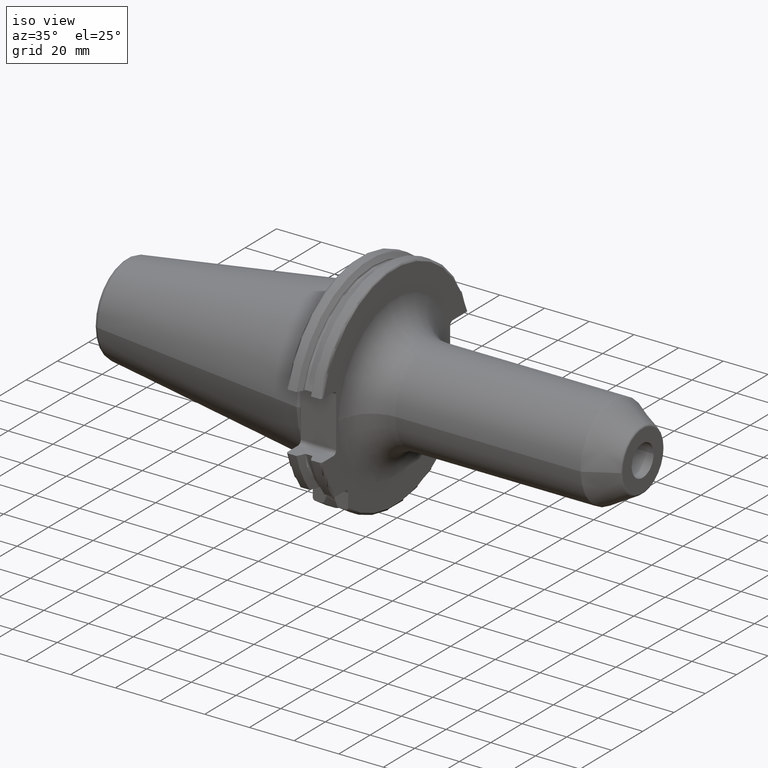
[diagram: clean part render]
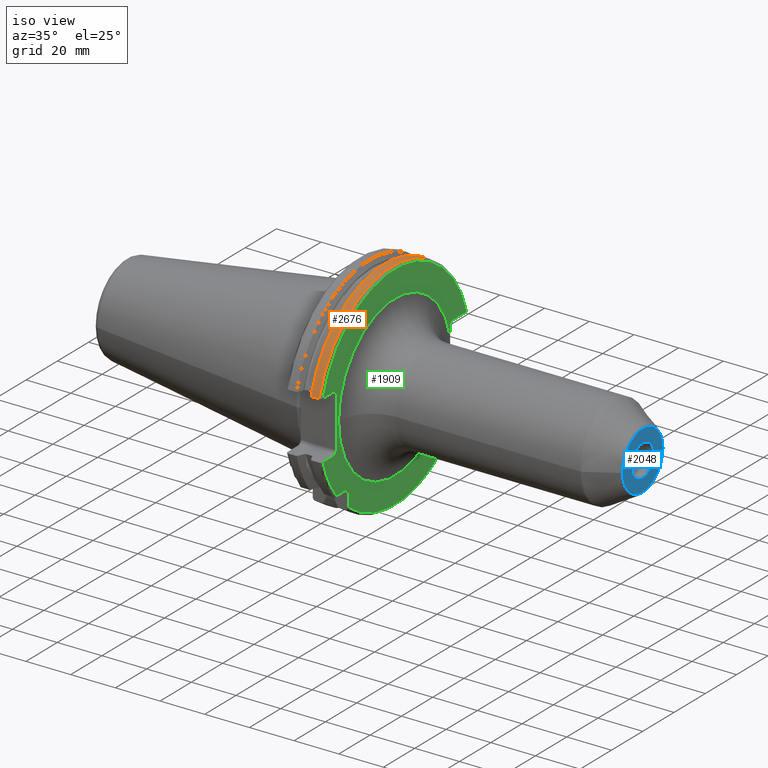
[diagram: same view with three faces highlighted in distinct colors, each labeled with its STEP entity id]
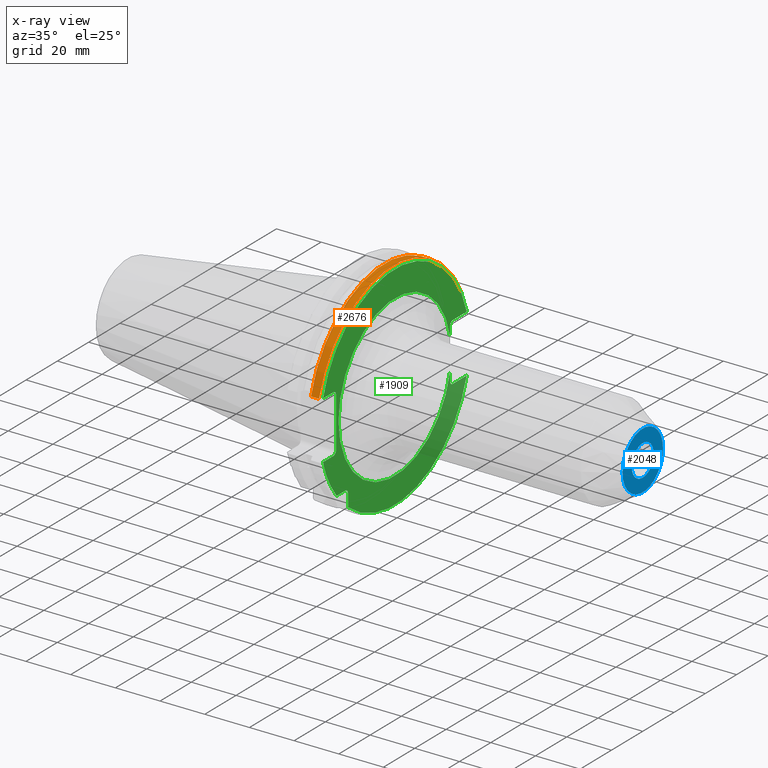
[diagram: x-ray of the same camera — body ghosted, the three highlighted faces saturated]
A machine part, iso view with three faces highlighted in distinct colors.
The next image is the same camera in x-ray (body ghosted, the three faces saturated) — at least one of them is partly hidden behind the body in this view.
Their STEP definitions:

[orange] entity #2676 — the highlighted cylindrical surface (partial cylindrical patch) has radius 48.7375 mm, axis along (1, 0, 0).
#839=DIRECTION('',(1.E0,0.E0,0.E0));
#840=VECTOR('',#839,3.634621614173E0);
#841=CARTESIAN_POINT('',(1.441537838583E1,4.699929686974E1,1.29E1));
#842=LINE('',#841,#840);
#843=CARTESIAN_POINT('',(1.805E1,0.E0,0.E0));
#844=DIRECTION('',(1.E0,0.E0,0.E0));
#845=DIRECTION('',(0.E0,9.643354064066E-1,2.646832521159E-1));
#846=AXIS2_PLACEMENT_3D('',#843,#844,#845);
#848=DIRECTION('',(1.E0,0.E0,0.E0));
#849=VECTOR('',#848,3.634621614173E0);
#850=CARTESIAN_POINT('',(1.441537838583E1,-4.699929686974E1,1.29E1));
#851=LINE('',#850,#849);
#852=CARTESIAN_POINT('',(1.441537838583E1,0.E0,0.E0));
#853=DIRECTION('',(1.E0,0.E0,0.E0));
#854=DIRECTION('',(0.E0,9.643354064066E-1,2.646832521159E-1));
#855=AXIS2_PLACEMENT_3D('',#852,#853,#854);
#898=CARTESIAN_POINT('',(1.441537838583E1,4.699929686974E1,1.29E1));
#910=CARTESIAN_POINT('',(1.441537838583E1,-4.699929686974E1,1.29E1));
#1525=VERTEX_POINT('',#898);
#1526=VERTEX_POINT('',#910);
#1541=CARTESIAN_POINT('',(1.805E1,4.699929686974E1,1.29E1));
#1542=VERTEX_POINT('',#1541);
#1545=CARTESIAN_POINT('',(1.805E1,-4.699929686974E1,1.29E1));
#1546=VERTEX_POINT('',#1545);
#2664=CARTESIAN_POINT('',(-1.076325E2,0.E0,0.E0));
#2665=DIRECTION('',(1.E0,0.E0,0.E0));
#2666=DIRECTION('',(0.E0,-1.E0,0.E0));
#2667=AXIS2_PLACEMENT_3D('',#2664,#2665,#2666);
#2668=CYLINDRICAL_SURFACE('',#2667,4.87375E1);
#2669=ORIENTED_EDGE('',*,*,#2602,.T.);
#2670=ORIENTED_EDGE('',*,*,#2645,.T.);
#2671=ORIENTED_EDGE('',*,*,#2261,.F.);
#2673=ORIENTED_EDGE('',*,*,#2672,.F.);
#2674=EDGE_LOOP('',(#2669,#2670,#2671,#2673));
#2675=FACE_OUTER_BOUND('',#2674,.F.);
#2676=ADVANCED_FACE('',(#2675),#2668,.T.);
#847=CIRCLE('',#846,4.87375E1);
#856=CIRCLE('',#855,4.87375E1);
#2261=EDGE_CURVE('',#1526,#1546,#851,.T.);
#2602=EDGE_CURVE('',#1525,#1542,#842,.T.);
#2645=EDGE_CURVE('',#1542,#1546,#847,.T.);
#2672=EDGE_CURVE('',#1525,#1526,#856,.T.);

[blue] entity #2048 — the highlighted planar face has unit normal (1, 0, 0).
#317=CARTESIAN_POINT('',(1.3E2,0.E0,0.E0));
#318=DIRECTION('',(1.E0,0.E0,0.E0));
#319=DIRECTION('',(0.E0,1.E0,0.E0));
#320=AXIS2_PLACEMENT_3D('',#317,#318,#319);
#322=CARTESIAN_POINT('',(1.3E2,0.E0,0.E0));
#323=DIRECTION('',(1.E0,0.E0,0.E0));
#324=DIRECTION('',(0.E0,-1.E0,0.E0));
#325=AXIS2_PLACEMENT_3D('',#322,#323,#324);
#327=CARTESIAN_POINT('',(1.3E2,0.E0,0.E0));
#328=DIRECTION('',(-1.E0,0.E0,0.E0));
#329=DIRECTION('',(0.E0,1.E0,0.E0));
#330=AXIS2_PLACEMENT_3D('',#327,#328,#329);
#332=CARTESIAN_POINT('',(1.3E2,0.E0,0.E0));
#333=DIRECTION('',(-1.E0,0.E0,0.E0));
#334=DIRECTION('',(0.E0,-1.E0,0.E0));
#335=AXIS2_PLACEMENT_3D('',#332,#333,#334);
#1634=CARTESIAN_POINT('',(1.3E2,-7.E0,0.E0));
#1635=VERTEX_POINT('',#1634);
#1644=CARTESIAN_POINT('',(1.3E2,7.E0,0.E0));
#1645=VERTEX_POINT('',#1644);
#1668=CARTESIAN_POINT('',(1.3E2,1.291709623135E1,-1.144169546657E-14));
#1669=CARTESIAN_POINT('',(1.3E2,-1.291709623135E1,-1.882190788351E-14));
#1670=VERTEX_POINT('',#1668);
#1671=VERTEX_POINT('',#1669);
#2033=CARTESIAN_POINT('',(1.3E2,0.E0,0.E0));
#2034=DIRECTION('',(1.E0,0.E0,0.E0));
#2035=DIRECTION('',(0.E0,-1.E0,0.E0));
#2036=AXIS2_PLACEMENT_3D('',#2033,#2034,#2035);
#2037=PLANE('',#2036);
#2039=ORIENTED_EDGE('',*,*,#2038,.T.);
#2041=ORIENTED_EDGE('',*,*,#2040,.T.);
#2042=EDGE_LOOP('',(#2039,#2041));
#2043=FACE_OUTER_BOUND('',#2042,.F.);
#2044=ORIENTED_EDGE('',*,*,#2017,.T.);
#2045=ORIENTED_EDGE('',*,*,#1996,.T.);
#2046=EDGE_LOOP('',(#2044,#2045));
#2047=FACE_BOUND('',#2046,.F.);
#2048=ADVANCED_FACE('',(#2043,#2047),#2037,.T.);
#321=CIRCLE('',#320,7.E0);
#326=CIRCLE('',#325,7.E0);
#331=CIRCLE('',#330,1.291709623135E1);
#336=CIRCLE('',#335,1.291709623135E1);
#1996=EDGE_CURVE('',#1635,#1645,#326,.T.);
#2017=EDGE_CURVE('',#1645,#1635,#321,.T.);
#2038=EDGE_CURVE('',#1670,#1671,#331,.T.);
#2040=EDGE_CURVE('',#1671,#1670,#336,.T.);

[green] entity #1909 — the highlighted planar face has unit normal (1, 0, 0).
#130=CARTESIAN_POINT('',(1.905E1,0.E0,0.E0));
#131=DIRECTION('',(1.E0,0.E0,0.E0));
#132=DIRECTION('',(0.E0,-1.E0,0.E0));
#133=AXIS2_PLACEMENT_3D('',#130,#131,#132);
#135=DIRECTION('',(0.E0,-2.032129438473E-6,-9.999999999979E-1));
#136=VECTOR('',#135,4.085507980678E0);
#137=CARTESIAN_POINT('',(1.905E1,3.530000830228E1,-7.064492019331E0));
#138=LINE('',#137,#136);
#139=DIRECTION('',(0.E0,-1.E0,0.E0));
#140=VECTOR('',#139,8.911493733886E0);
#141=CARTESIAN_POINT('',(1.905E1,4.596149373389E1,-1.29E1));
#142=LINE('',#141,#140);
#143=DIRECTION('',(0.E0,0.E0,1.E0));
#144=VECTOR('',#143,5.653810627237E0);
#145=CARTESIAN_POINT('',(1.905E1,-2.985E1,-3.725381062724E1));
#146=LINE('',#145,#144);
#147=DIRECTION('',(0.E0,-1.E0,0.E0));
#148=VECTOR('',#147,5.653810627237E0);
#149=CARTESIAN_POINT('',(1.905E1,-3.16E1,-2.985E1));
#150=LINE('',#149,#148);
#151=DIRECTION('',(0.E0,1.E0,0.E0));
#152=VECTOR('',#151,6.711493733886E0);
#153=CARTESIAN_POINT('',(1.905E1,-4.596149373389E1,-1.29E1));
#154=LINE('',#153,#152);
#155=DIRECTION('',(0.E0,0.E0,1.E0));
#156=VECTOR('',#155,2.23E1);
#157=CARTESIAN_POINT('',(1.905E1,-3.75E1,-1.115E1));
#158=LINE('',#157,#156);
#159=DIRECTION('',(0.E0,1.E0,0.E0));
#160=VECTOR('',#159,6.711493733886E0);
#161=CARTESIAN_POINT('',(1.905E1,-4.596149373389E1,1.29E1));
#162=LINE('',#161,#160);
#163=DIRECTION('',(0.E0,-1.E0,0.E0));
#164=VECTOR('',#163,8.911493733886E0);
#165=CARTESIAN_POINT('',(1.905E1,4.596149373389E1,1.29E1));
#166=LINE('',#165,#164);
#167=DIRECTION('',(0.E0,2.233969081153E-6,-9.999999999975E-1));
#168=VECTOR('',#167,4.085480621795E0);
#169=CARTESIAN_POINT('',(1.905E1,3.53E1,1.115E1));
#170=LINE('',#169,#168);
#171=CARTESIAN_POINT('',(1.905E1,0.E0,0.E0));
#172=DIRECTION('',(1.E0,0.E0,0.E0));
#173=DIRECTION('',(0.E0,9.805577363582E-1,1.962307969408E-1));
#174=AXIS2_PLACEMENT_3D('',#171,#172,#173);
#431=CARTESIAN_POINT('',(1.905E1,3.705E1,-1.115E1));
#432=DIRECTION('',(-1.E0,0.E0,0.E0));
#433=DIRECTION('',(0.E0,0.E0,-1.E0));
#434=AXIS2_PLACEMENT_3D('',#431,#432,#433);
#500=CARTESIAN_POINT('',(1.905E1,-3.925E1,1.115E1));
#501=DIRECTION('',(-1.E0,0.E0,0.E0));
#502=DIRECTION('',(0.E0,0.E0,1.E0));
#503=AXIS2_PLACEMENT_3D('',#500,#501,#502);
#518=CARTESIAN_POINT('',(1.905E1,-3.925E1,-1.115E1));
#519=DIRECTION('',(-1.E0,0.E0,0.E0));
#520=DIRECTION('',(0.E0,1.E0,0.E0));
#521=AXIS2_PLACEMENT_3D('',#518,#519,#520);
#541=CARTESIAN_POINT('',(1.905E1,4.596149373389E1,-1.29E1));
#553=CARTESIAN_POINT('',(1.905E1,0.E0,0.E0));
#554=DIRECTION('',(-1.E0,0.E0,0.E0));
#555=DIRECTION('',(0.E0,9.627964123359E-1,-2.702278083268E-1));
#556=AXIS2_PLACEMENT_3D('',#553,#554,#555);
#558=CARTESIAN_POINT('',(1.905E1,-4.596149373389E1,-1.29E1));
#569=CARTESIAN_POINT('',(1.905E1,0.E0,0.E0));
#570=DIRECTION('',(-1.E0,0.E0,0.E0));
#571=DIRECTION('',(0.E0,-7.803888060170E-1,-6.252945797329E-1));
#572=AXIS2_PLACEMENT_3D('',#569,#570,#571);
#583=CARTESIAN_POINT('',(1.905E1,-3.725381062724E1,-2.985E1));
#704=CARTESIAN_POINT('',(1.905E1,-3.16E1,-3.16E1));
#705=DIRECTION('',(-1.E0,0.E0,0.E0));
#706=DIRECTION('',(0.E0,0.E0,1.E0));
#707=AXIS2_PLACEMENT_3D('',#704,#705,#706);
#789=CARTESIAN_POINT('',(1.905E1,3.705E1,1.115E1));
#790=DIRECTION('',(-1.E0,0.E0,0.E0));
#791=DIRECTION('',(0.E0,-1.E0,0.E0));
#792=AXIS2_PLACEMENT_3D('',#789,#790,#791);
#799=CARTESIAN_POINT('',(1.905E1,4.596149373389E1,1.29E1));
#810=CARTESIAN_POINT('',(1.905E1,0.E0,0.E0));
#811=DIRECTION('',(1.E0,0.E0,0.E0));
#812=DIRECTION('',(0.E0,9.627964123359E-1,2.702278083268E-1));
#813=AXIS2_PLACEMENT_3D('',#810,#811,#812);
#824=CARTESIAN_POINT('',(1.905E1,-4.596149373389E1,1.29E1));
#1558=VERTEX_POINT('',#799);
#1559=VERTEX_POINT('',#824);
#1562=VERTEX_POINT('',#541);
#1563=VERTEX_POINT('',#558);
#1582=CARTESIAN_POINT('',(1.905E1,-2.985E1,-3.725381062724E1));
#1583=VERTEX_POINT('',#1582);
#1590=CARTESIAN_POINT('',(1.905E1,-3.75E1,-1.115E1));
#1592=VERTEX_POINT('',#1590);
#1594=CARTESIAN_POINT('',(1.905E1,-3.925E1,-1.29E1));
#1596=VERTEX_POINT('',#1594);
#1598=CARTESIAN_POINT('',(1.905E1,-3.925E1,1.29E1));
#1600=VERTEX_POINT('',#1598);
#1602=CARTESIAN_POINT('',(1.905E1,-3.75E1,1.115E1));
#1604=VERTEX_POINT('',#1602);
#1606=CARTESIAN_POINT('',(1.905E1,3.53E1,1.115E1));
#1608=VERTEX_POINT('',#1606);
#1610=CARTESIAN_POINT('',(1.905E1,3.705E1,1.29E1));
#1612=VERTEX_POINT('',#1610);
#1614=CARTESIAN_POINT('',(1.905E1,3.705E1,-1.29E1));
#1616=VERTEX_POINT('',#1614);
#1618=CARTESIAN_POINT('',(1.905E1,3.53E1,-1.115E1));
#1620=VERTEX_POINT('',#1618);
#1622=CARTESIAN_POINT('',(1.905E1,-3.16E1,-2.985E1));
#1623=CARTESIAN_POINT('',(1.905E1,-2.985E1,-3.16E1));
#1624=VERTEX_POINT('',#1622);
#1625=VERTEX_POINT('',#1623);
#1646=CARTESIAN_POINT('',(1.905E1,-3.6E1,0.E0));
#1647=CARTESIAN_POINT('',(1.905E1,3.530009667998E1,-7.064217889032E0));
#1648=VERTEX_POINT('',#1646);
#1649=VERTEX_POINT('',#1647);
#1654=CARTESIAN_POINT('',(1.905E1,3.530007850890E1,7.064308689871E0));
#1655=VERTEX_POINT('',#1654);
#1690=VERTEX_POINT('',#583);
#1866=CARTESIAN_POINT('',(1.905E1,0.E0,0.E0));
#1867=DIRECTION('',(1.E0,0.E0,0.E0));
#1868=DIRECTION('',(0.E0,-1.E0,0.E0));
#1869=AXIS2_PLACEMENT_3D('',#1866,#1867,#1868);
#1870=PLANE('',#1869);
#1872=ORIENTED_EDGE('',*,*,#1871,.T.);
#1873=ORIENTED_EDGE('',*,*,#1844,.T.);
#1875=ORIENTED_EDGE('',*,*,#1874,.F.);
#1877=ORIENTED_EDGE('',*,*,#1876,.F.);
#1879=ORIENTED_EDGE('',*,*,#1878,.T.);
#1881=ORIENTED_EDGE('',*,*,#1880,.T.);
#1883=ORIENTED_EDGE('',*,*,#1882,.F.);
#1885=ORIENTED_EDGE('',*,*,#1884,.T.);
#1887=ORIENTED_EDGE('',*,*,#1886,.T.);
#1889=ORIENTED_EDGE('',*,*,#1888,.T.);
#1891=ORIENTED_EDGE('',*,*,#1890,.F.);
#1893=ORIENTED_EDGE('',*,*,#1892,.T.);
#1895=ORIENTED_EDGE('',*,*,#1894,.F.);
#1897=ORIENTED_EDGE('',*,*,#1896,.F.);
#1899=ORIENTED_EDGE('',*,*,#1898,.F.);
#1901=ORIENTED_EDGE('',*,*,#1900,.T.);
#1903=ORIENTED_EDGE('',*,*,#1902,.F.);
#1904=ORIENTED_EDGE('',*,*,#1850,.T.);
#1906=ORIENTED_EDGE('',*,*,#1905,.T.);
#1907=EDGE_LOOP('',(#1872,#1873,#1875,#1877,#1879,#1881,#1883,#1885,#1887,#1889,
#1891,#1893,#1895,#1897,#1899,#1901,#1903,#1904,#1906));
#1908=FACE_OUTER_BOUND('',#1907,.F.);
#1909=ADVANCED_FACE('',(#1908),#1870,.T.);
#134=CIRCLE('',#133,3.6E1);
#175=CIRCLE('',#174,3.6E1);
#435=CIRCLE('',#434,1.75E0);
#504=CIRCLE('',#503,1.75E0);
#522=CIRCLE('',#521,1.75E0);
#557=CIRCLE('',#556,4.77375E1);
#573=CIRCLE('',#572,4.77375E1);
#708=CIRCLE('',#707,1.75E0);
#793=CIRCLE('',#792,1.75E0);
#814=CIRCLE('',#813,4.77375E1);
#1844=EDGE_CURVE('',#1649,#1620,#138,.T.);
#1850=EDGE_CURVE('',#1608,#1655,#170,.T.);
#1871=EDGE_CURVE('',#1648,#1649,#134,.T.);
#1874=EDGE_CURVE('',#1616,#1620,#435,.T.);
#1876=EDGE_CURVE('',#1562,#1616,#142,.T.);
#1878=EDGE_CURVE('',#1562,#1583,#557,.T.);
#1880=EDGE_CURVE('',#1583,#1625,#146,.T.);
#1882=EDGE_CURVE('',#1624,#1625,#708,.T.);
#1884=EDGE_CURVE('',#1624,#1690,#150,.T.);
#1886=EDGE_CURVE('',#1690,#1563,#573,.T.);
#1888=EDGE_CURVE('',#1563,#1596,#154,.T.);
#1890=EDGE_CURVE('',#1592,#1596,#522,.T.);
#1892=EDGE_CURVE('',#1592,#1604,#158,.T.);
#1894=EDGE_CURVE('',#1600,#1604,#504,.T.);
#1896=EDGE_CURVE('',#1559,#1600,#162,.T.);
#1898=EDGE_CURVE('',#1558,#1559,#814,.T.);
#1900=EDGE_CURVE('',#1558,#1612,#166,.T.);
#1902=EDGE_CURVE('',#1608,#1612,#793,.T.);
#1905=EDGE_CURVE('',#1655,#1648,#175,.T.);